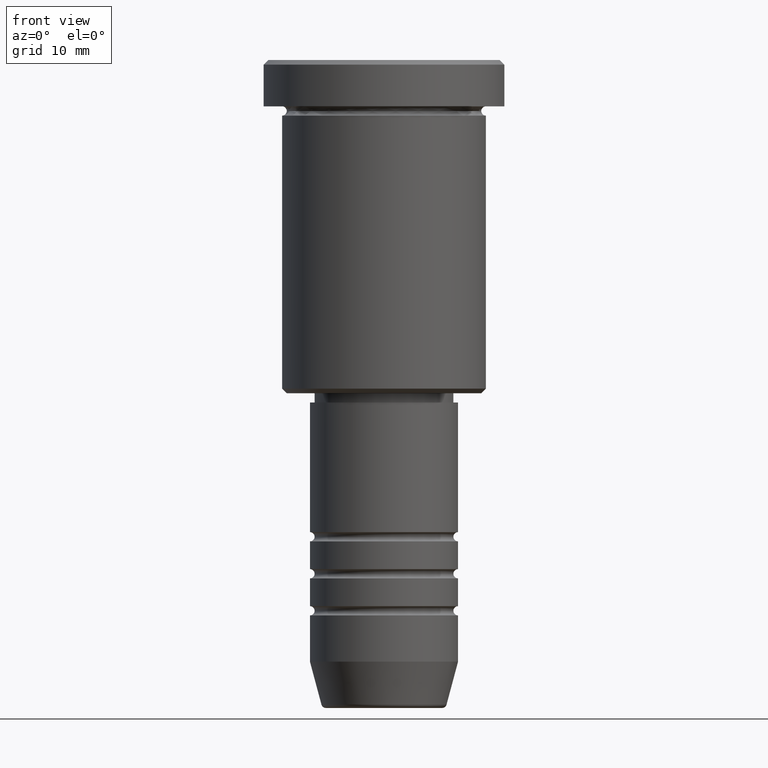
[diagram: clean part render]
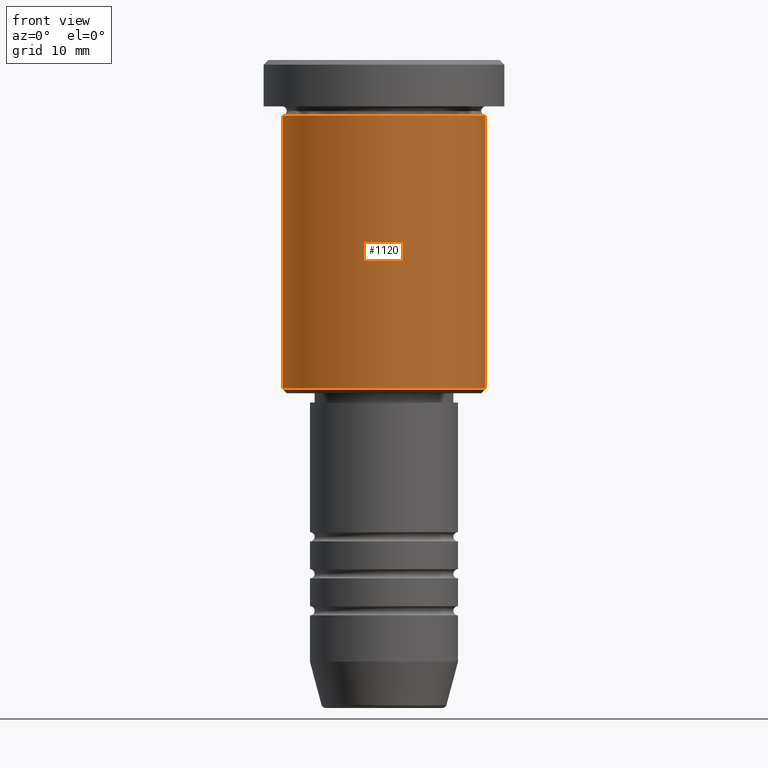
[diagram: same view with one face highlighted and labeled with its STEP entity id]
A machine part, front view. The second image highlights one B-rep face of the part: STEP entity #1120.
In plain terms, the highlighted cylindrical surface (partial cylindrical patch) has radius 11 mm, axis along (-0, -0, 1).
Its self-contained STEP definition (entity closure, byte-faithful):
#38 = VERTEX_POINT ( 'NONE', #1140 ) ;
#44 = EDGE_CURVE ( 'NONE', #891, #562, #963, .T. ) ;
#95 = CARTESIAN_POINT ( 'NONE',  ( 0.000000000000000000, 0.000000000000000000, 0.000000000000000000 ) ) ;
#99 = CYLINDRICAL_SURFACE ( 'NONE', #423, 11.00000000000000000 ) ;
#205 = EDGE_CURVE ( 'NONE', #38, #562, #1016, .T. ) ;
#259 = EDGE_LOOP ( 'NONE', ( #1148, #374, #556, #416 ) ) ;
#366 = VECTOR ( 'NONE', #913, 1000.000000000000000 ) ;
#374 = ORIENTED_EDGE ( 'NONE', *, *, #950, .T. ) ;
#416 = ORIENTED_EDGE ( 'NONE', *, *, #205, .F. ) ;
#423 = AXIS2_PLACEMENT_3D ( 'NONE', #95, #805, #893 ) ;
#434 = CARTESIAN_POINT ( 'NONE',  ( 0.000000000000000000, 0.000000000000000000, -5.999999999999999112 ) ) ;
#435 = AXIS2_PLACEMENT_3D ( 'NONE', #434, #626, #903 ) ;
#441 = CIRCLE ( 'NONE', #1114, 11.00000000000000000 ) ;
#445 = CARTESIAN_POINT ( 'NONE',  ( -11.00000000000000000, 1.347111479062088405E-15, 0.000000000000000000 ) ) ;
#494 = CARTESIAN_POINT ( 'NONE',  ( 11.00000000000000000, 0.000000000000000000, -35.49999999999999289 ) ) ;
#503 = CARTESIAN_POINT ( 'NONE',  ( 0.000000000000000000, 0.000000000000000000, -35.49999999999999289 ) ) ;
#518 = EDGE_CURVE ( 'NONE', #1137, #38, #1166, .T. ) ;
#556 = ORIENTED_EDGE ( 'NONE', *, *, #44, .T. ) ;
#562 = VERTEX_POINT ( 'NONE', #1026 ) ;
#626 = DIRECTION ( 'NONE',  ( -0.000000000000000000, -0.000000000000000000, 1.000000000000000000 ) ) ;
#726 = DIRECTION ( 'NONE',  ( -0.000000000000000000, -0.000000000000000000, 1.000000000000000000 ) ) ;
#805 = DIRECTION ( 'NONE',  ( -0.000000000000000000, -0.000000000000000000, 1.000000000000000000 ) ) ;
#815 = FACE_OUTER_BOUND ( 'NONE', #259, .T. ) ;
#829 = CARTESIAN_POINT ( 'NONE',  ( 11.00000000000000000, 0.000000000000000000, 0.000000000000000000 ) ) ;
#891 = VERTEX_POINT ( 'NONE', #494 ) ;
#893 = DIRECTION ( 'NONE',  ( 1.000000000000000000, 0.000000000000000000, 0.000000000000000000 ) ) ;
#903 = DIRECTION ( 'NONE',  ( 1.000000000000000000, 0.000000000000000000, 0.000000000000000000 ) ) ;
#913 = DIRECTION ( 'NONE',  ( -0.000000000000000000, -0.000000000000000000, 1.000000000000000000 ) ) ;
#950 = EDGE_CURVE ( 'NONE', #1137, #891, #441, .T. ) ;
#963 = LINE ( 'NONE', #829, #366 ) ;
#1016 = CIRCLE ( 'NONE', #435, 11.00000000000000000 ) ;
#1026 = CARTESIAN_POINT ( 'NONE',  ( 11.00000000000000000, 0.000000000000000000, -5.999999999999999112 ) ) ;
#1047 = DIRECTION ( 'NONE',  ( -0.000000000000000000, -0.000000000000000000, 1.000000000000000000 ) ) ;
#1073 = VECTOR ( 'NONE', #726, 1000.000000000000000 ) ;
#1097 = CARTESIAN_POINT ( 'NONE',  ( -11.00000000000000000, 1.347111479062088405E-15, -35.49999999999999289 ) ) ;
#1114 = AXIS2_PLACEMENT_3D ( 'NONE', #503, #1047, #1162 ) ;
#1120 = ADVANCED_FACE ( 'NONE', ( #815 ), #99, .T. ) ;
#1137 = VERTEX_POINT ( 'NONE', #1097 ) ;
#1140 = CARTESIAN_POINT ( 'NONE',  ( -11.00000000000000000, 1.347111479062088405E-15, -5.999999999999999112 ) ) ;
#1148 = ORIENTED_EDGE ( 'NONE', *, *, #518, .F. ) ;
#1162 = DIRECTION ( 'NONE',  ( -1.000000000000000000, 0.000000000000000000, 0.000000000000000000 ) ) ;
#1166 = LINE ( 'NONE', #445, #1073 ) ;